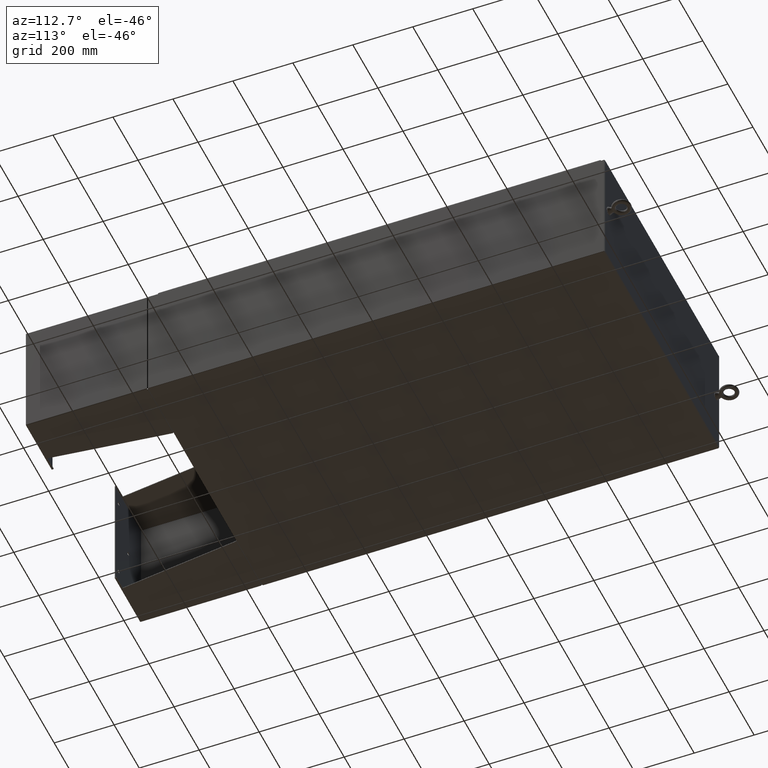
[diagram: clean part render]
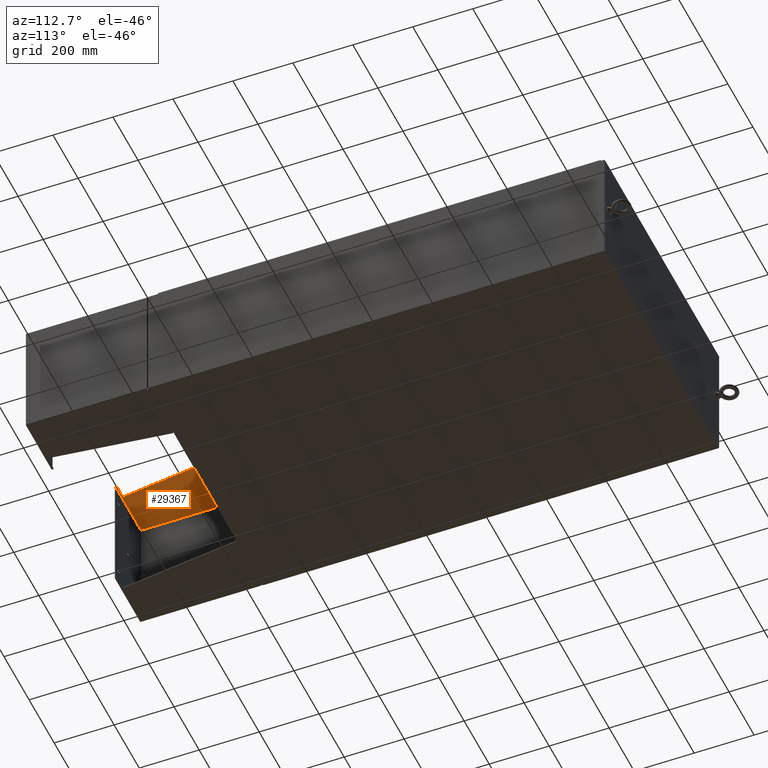
[diagram: same view with one face highlighted and labeled with its STEP entity id]
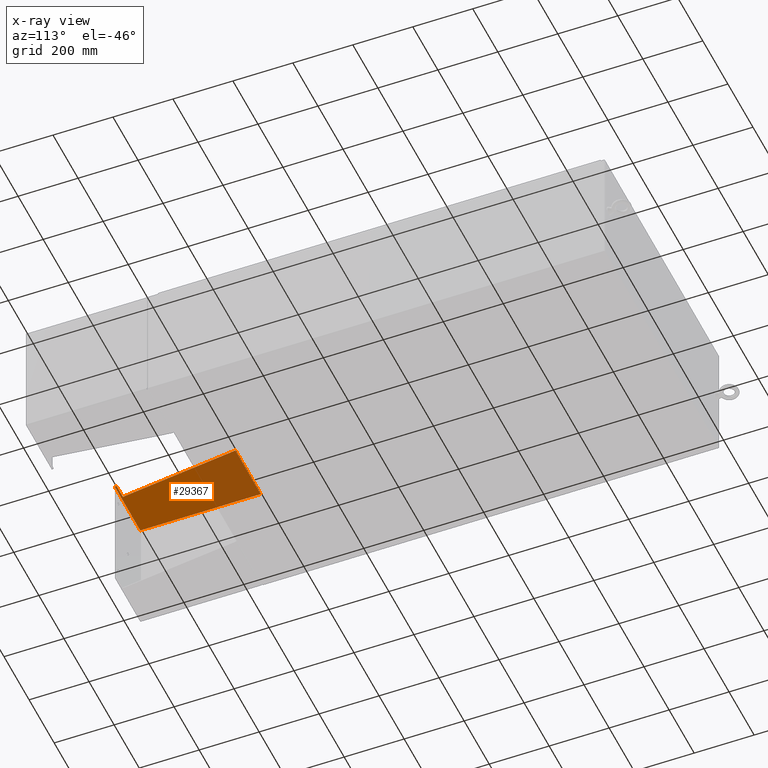
[diagram: x-ray of the same camera — body ghosted, the highlighted face saturated]
A machine part, auxiliary view. The second image highlights one B-rep face of the part: STEP entity #29367.
The next image is the same camera in x-ray: the body ghosted, the highlighted face saturated — about 39% of this face is hidden behind the body in this view.
In plain terms, the highlighted planar face has unit normal (0, 0, -1).
Its self-contained STEP definition (entity closure, byte-faithful):
#1846 = VECTOR ( 'NONE', #28815, 39.37007874015748100 ) ;
#5492 = VECTOR ( 'NONE', #42573, 39.37007874015748100 ) ;
#12509 = DIRECTION ( 'NONE',  ( -3.550958521948298200E-015, -0.0000000000000000000, 1.000000000000000000 ) ) ;
#14444 = EDGE_CURVE ( 'NONE', #19746, #62508, #41747, .T. ) ;
#14600 = VECTOR ( 'NONE', #58069, 39.37007874015748100 ) ;
#15079 = ORIENTED_EDGE ( 'NONE', *, *, #18576, .F. ) ;
#15661 = ORIENTED_EDGE ( 'NONE', *, *, #36336, .F. ) ;
#18209 = CARTESIAN_POINT ( 'NONE',  ( -7.896000000000027400, 8.000000000000001800, 8.000999999999999400 ) ) ;
#18576 = EDGE_CURVE ( 'NONE', #28031, #45724, #38566, .T. ) ;
#19099 = CARTESIAN_POINT ( 'NONE',  ( -7.896000000000027400, -7.749999999999999100, 8.001000000000006600 ) ) ;
#19685 = CARTESIAN_POINT ( 'NONE',  ( -7.896000000000027400, -7.749999999999999100, 8.001000000000006600 ) ) ;
#19746 = VERTEX_POINT ( 'NONE', #48947 ) ;
#22287 = DIRECTION ( 'NONE',  ( 0.0000000000000000000, 0.0000000000000000000, -1.000000000000000000 ) ) ;
#22518 = EDGE_LOOP ( 'NONE', ( #24888, #15661, #37722, #33450, #15079, #53706 ) ) ;
#23055 = DIRECTION ( 'NONE',  ( 3.550958521948298200E-015, 0.0000000000000000000, -1.000000000000000000 ) ) ;
#24888 = ORIENTED_EDGE ( 'NONE', *, *, #14444, .F. ) ;
#26339 = VERTEX_POINT ( 'NONE', #46697 ) ;
#26830 = CARTESIAN_POINT ( 'NONE',  ( -7.896000000000027400, -7.999999999999999100, 8.000999999999999400 ) ) ;
#28031 = VERTEX_POINT ( 'NONE', #61387 ) ;
#28815 = DIRECTION ( 'NONE',  ( 3.550958521948298200E-015, 0.0000000000000000000, -1.000000000000000000 ) ) ;
#29367 = ADVANCED_FACE ( 'NONE', ( #39105 ), #42258, .T. ) ;
#33342 = EDGE_CURVE ( 'NONE', #45724, #26339, #58153, .T. ) ;
#33450 = ORIENTED_EDGE ( 'NONE', *, *, #33342, .F. ) ;
#35210 = VECTOR ( 'NONE', #22287, 39.37007874015748100 ) ;
#36336 = EDGE_CURVE ( 'NONE', #51505, #19746, #38716, .T. ) ;
#37722 = ORIENTED_EDGE ( 'NONE', *, *, #60582, .F. ) ;
#38566 = LINE ( 'NONE', #41980, #61380 ) ;
#38716 = LINE ( 'NONE', #19099, #1846 ) ;
#39105 = FACE_OUTER_BOUND ( 'NONE', #22518, .T. ) ;
#39670 = DIRECTION ( 'NONE',  ( 0.0000000000000000000, -1.000000000000000000, 0.0000000000000000000 ) ) ;
#41512 = CARTESIAN_POINT ( 'NONE',  ( -7.896000000000013200, 7.857000000000001100, 8.000999999999999400 ) ) ;
#41747 = LINE ( 'NONE', #50449, #14600 ) ;
#41980 = CARTESIAN_POINT ( 'NONE',  ( -7.895999999999999000, 8.000000000000001800, 0.03900000000000031900 ) ) ;
#42258 = PLANE ( 'NONE',  #48746 ) ;
#42573 = DIRECTION ( 'NONE',  ( -0.0000000000000000000, 1.000000000000000000, -0.0000000000000000000 ) ) ;
#43908 = LINE ( 'NONE', #61950, #5492 ) ;
#45063 = CARTESIAN_POINT ( 'NONE',  ( -7.895999999999998100, -7.999999999999999100, 0.03899999999999813300 ) ) ;
#45724 = VERTEX_POINT ( 'NONE', #45063 ) ;
#46697 = CARTESIAN_POINT ( 'NONE',  ( -7.896000000000027400, -7.999999999999999100, 8.000999999999999400 ) ) ;
#48085 = LINE ( 'NONE', #41512, #35210 ) ;
#48746 = AXIS2_PLACEMENT_3D ( 'NONE', #18209, #52063, #23055 ) ;
#48947 = CARTESIAN_POINT ( 'NONE',  ( -7.896000000000019400, -7.749999999999999100, 6.052216497445928500 ) ) ;
#50449 = CARTESIAN_POINT ( 'NONE',  ( -7.896000000000019400, -7.749999999999999100, 6.052216497445928500 ) ) ;
#51505 = VERTEX_POINT ( 'NONE', #19685 ) ;
#52063 = DIRECTION ( 'NONE',  ( 1.000000000000000000, 0.0000000000000000000, 3.550958521948298200E-015 ) ) ;
#53706 = ORIENTED_EDGE ( 'NONE', *, *, #57543, .F. ) ;
#55186 = CARTESIAN_POINT ( 'NONE',  ( -7.896000000000013200, 7.857000000000001100, 8.000999999999999400 ) ) ;
#56602 = VECTOR ( 'NONE', #12509, 39.37007874015748100 ) ;
#57543 = EDGE_CURVE ( 'NONE', #62508, #28031, #48085, .T. ) ;
#58069 = DIRECTION ( 'NONE',  ( -4.399772607369800400E-016, 0.9922942345449394800, 0.1239038017531047900 ) ) ;
#58153 = LINE ( 'NONE', #26830, #56602 ) ;
#60582 = EDGE_CURVE ( 'NONE', #26339, #51505, #43908, .T. ) ;
#61380 = VECTOR ( 'NONE', #39670, 39.37007874015748100 ) ;
#61387 = CARTESIAN_POINT ( 'NONE',  ( -7.895999999999998100, 7.857000000000002000, 0.03900000000000031900 ) ) ;
#61950 = CARTESIAN_POINT ( 'NONE',  ( -7.896000000000027400, 8.000000000000001800, 8.000999999999999400 ) ) ;
#62508 = VERTEX_POINT ( 'NONE', #55186 ) ;